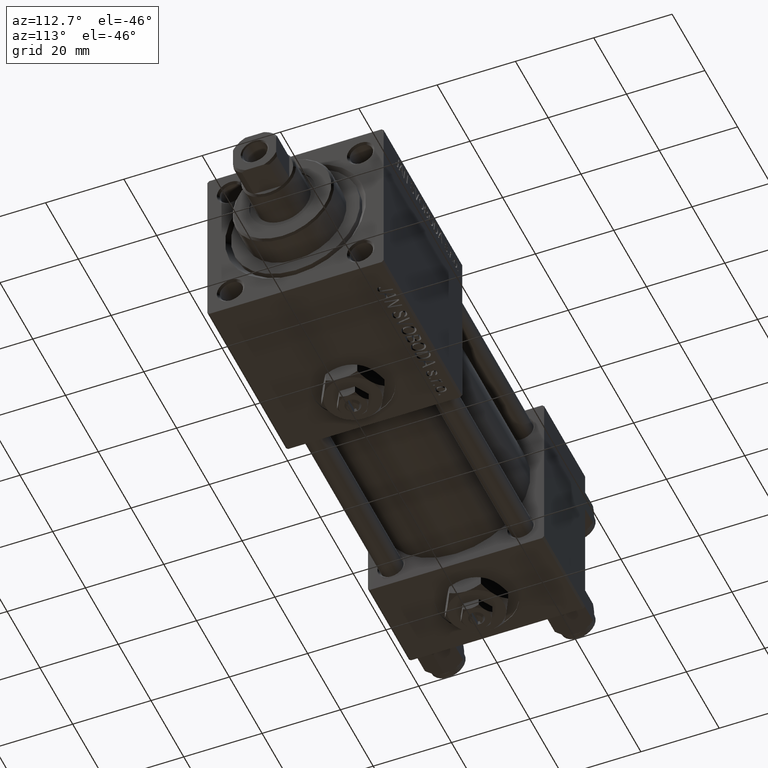
[diagram: clean part render]
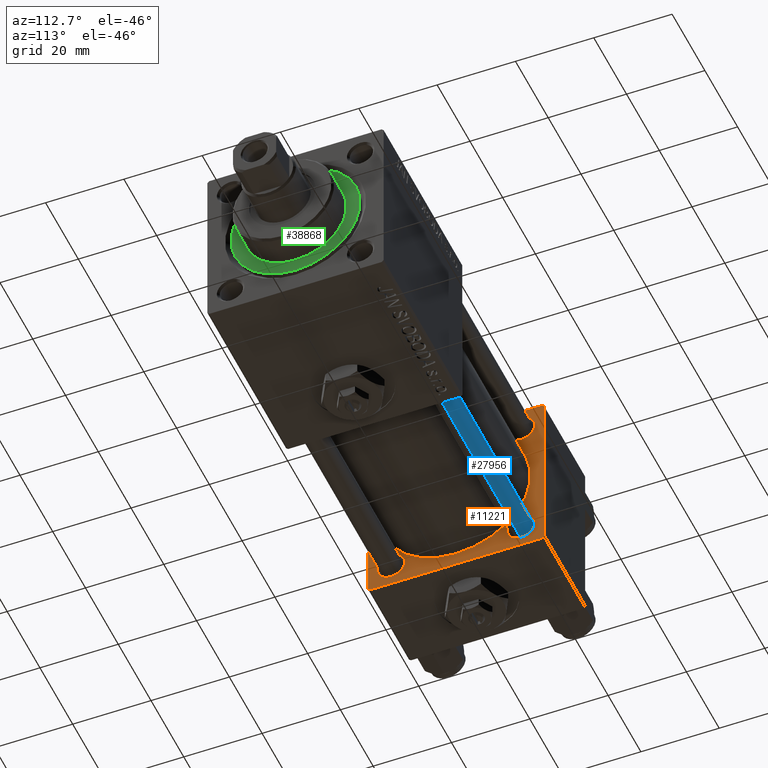
[diagram: same view with three faces highlighted in distinct colors, each labeled with its STEP entity id]
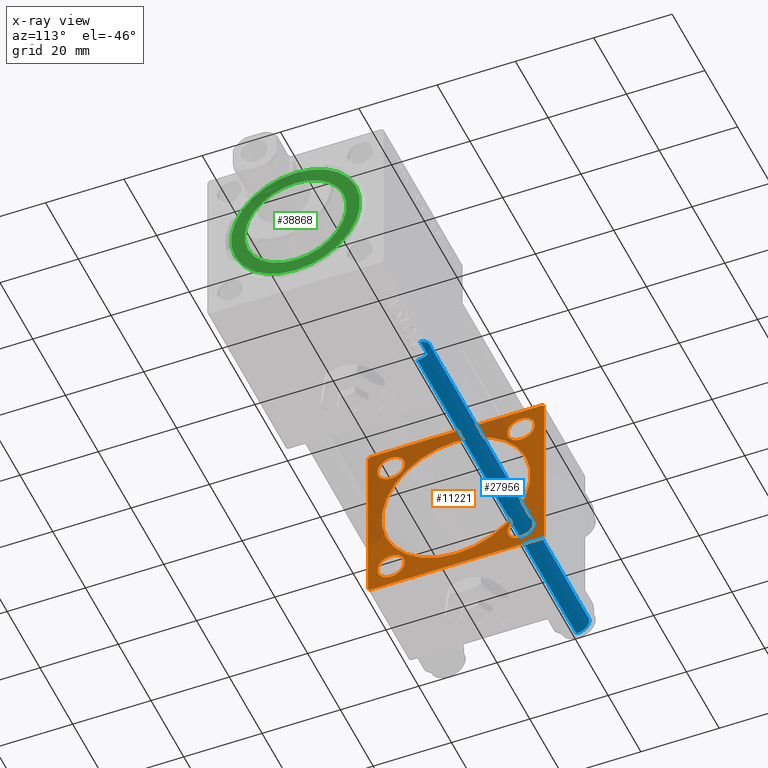
[diagram: x-ray of the same camera — body ghosted, the three highlighted faces saturated]
A machine part, auxiliary view with three faces highlighted in distinct colors.
The next image is the same camera in x-ray (body ghosted, the three faces saturated) — at least one of them is partly hidden behind the body in this view.
Their STEP definitions:

[orange] entity #11221 — the highlighted planar face has unit normal (-1, 0, 0).
#86 = DIRECTION ( 'NONE',  ( -1.000000000000000000, 0.000000000000000000, -0.000000000000000000 ) ) ;
#229 = AXIS2_PLACEMENT_3D ( 'NONE', #32023, #368, #28322 ) ;
#368 = DIRECTION ( 'NONE',  ( -1.000000000000000000, 0.000000000000000000, -0.000000000000000000 ) ) ;
#390 = CARTESIAN_POINT ( 'NONE',  ( 25.00000000000000000, -16.59999999999999076, 16.60000000000000853 ) ) ;
#661 = VERTEX_POINT ( 'NONE', #18632 ) ;
#1061 = EDGE_CURVE ( 'NONE', #34885, #38918, #35668, .T. ) ;
#1447 = CARTESIAN_POINT ( 'NONE',  ( 25.00000000000000000, 22.50000000000000000, -21.99999999999996803 ) ) ;
#1501 = EDGE_CURVE ( 'NONE', #20015, #45585, #28493, .T. ) ;
#1960 = VERTEX_POINT ( 'NONE', #51274 ) ;
#2271 = CARTESIAN_POINT ( 'NONE',  ( 25.00000000000000000, -2.602085213965210642E-15, 19.00000000000000000 ) ) ;
#2280 = LINE ( 'NONE', #22583, #23923 ) ;
#2391 = LINE ( 'NONE', #34575, #40016 ) ;
#2449 = VECTOR ( 'NONE', #6120, 1000.000000000000000 ) ;
#2513 = CARTESIAN_POINT ( 'NONE',  ( 25.00000000000000000, 21.99999999999999289, -22.49999999999999645 ) ) ;
#2673 = AXIS2_PLACEMENT_3D ( 'NONE', #45140, #5039, #37481 ) ;
#3078 = DIRECTION ( 'NONE',  ( -1.000000000000000000, 0.000000000000000000, -0.000000000000000000 ) ) ;
#3853 = ORIENTED_EDGE ( 'NONE', *, *, #23274, .F. ) ;
#4359 = DIRECTION ( 'NONE',  ( 0.000000000000000000, 0.000000000000000000, 1.000000000000000000 ) ) ;
#4387 = CARTESIAN_POINT ( 'NONE',  ( 25.00000000000000000, -16.59999999999999076, -20.09999999999999787 ) ) ;
#4488 = EDGE_CURVE ( 'NONE', #12583, #7032, #17740, .T. ) ;
#5039 = DIRECTION ( 'NONE',  ( 1.000000000000000000, -0.000000000000000000, 0.000000000000000000 ) ) ;
#5526 = DIRECTION ( 'NONE',  ( 0.000000000000000000, 0.000000000000000000, 1.000000000000000000 ) ) ;
#5797 = VECTOR ( 'NONE', #32284, 1000.000000000000114 ) ;
#6120 = DIRECTION ( 'NONE',  ( 0.000000000000000000, 0.000000000000000000, -1.000000000000000000 ) ) ;
#6390 = ORIENTED_EDGE ( 'NONE', *, *, #25442, .T. ) ;
#6749 = VECTOR ( 'NONE', #28401, 1000.000000000000000 ) ;
#6785 = PLANE ( 'NONE',  #21090 ) ;
#7032 = VERTEX_POINT ( 'NONE', #13164 ) ;
#7342 = VERTEX_POINT ( 'NONE', #34194 ) ;
#7427 = ORIENTED_EDGE ( 'NONE', *, *, #18854, .T. ) ;
#7720 = EDGE_CURVE ( 'NONE', #1960, #38456, #33608, .T. ) ;
#9186 = AXIS2_PLACEMENT_3D ( 'NONE', #48865, #20121, #24853 ) ;
#9856 = CARTESIAN_POINT ( 'NONE',  ( 25.00000000000000000, -16.59999999999999076, -13.10000000000001741 ) ) ;
#10727 = FACE_BOUND ( 'NONE', #33062, .T. ) ;
#11221 = ADVANCED_FACE ( 'NONE', ( #35770, #43170, #39471, #10727, #23120, #42908 ), #6785, .F. ) ;
#11565 = EDGE_CURVE ( 'NONE', #18913, #14906, #14342, .T. ) ;
#12440 = DIRECTION ( 'NONE',  ( 0.000000000000000000, 0.000000000000000000, -1.000000000000000000 ) ) ;
#12511 = DIRECTION ( 'NONE',  ( -1.000000000000000000, 0.000000000000000000, -0.000000000000000000 ) ) ;
#12583 = VERTEX_POINT ( 'NONE', #44929 ) ;
#13164 = CARTESIAN_POINT ( 'NONE',  ( 25.00000000000000000, -22.50000000000000000, -21.99999999999997158 ) ) ;
#14116 = VECTOR ( 'NONE', #12440, 1000.000000000000000 ) ;
#14298 = AXIS2_PLACEMENT_3D ( 'NONE', #390, #12511, #4359 ) ;
#14342 = CIRCLE ( 'NONE', #35424, 3.500000000000003109 ) ;
#14906 = VERTEX_POINT ( 'NONE', #40149 ) ;
#15064 = DIRECTION ( 'NONE',  ( 0.000000000000000000, 0.7071067811865426878, -0.7071067811865524577 ) ) ;
#15941 = LINE ( 'NONE', #44679, #5797 ) ;
#16849 = EDGE_CURVE ( 'NONE', #34885, #7342, #15941, .T. ) ;
#17083 = CIRCLE ( 'NONE', #229, 3.500000000000003109 ) ;
#17740 = LINE ( 'NONE', #25636, #2449 ) ;
#18632 = CARTESIAN_POINT ( 'NONE',  ( 25.00000000000000000, -2.752562955852396712E-16, -19.00000000000000000 ) ) ;
#18854 = EDGE_CURVE ( 'NONE', #49213, #38918, #29441, .T. ) ;
#18913 = VERTEX_POINT ( 'NONE', #41842 ) ;
#18916 = VERTEX_POINT ( 'NONE', #2271 ) ;
#19008 = EDGE_LOOP ( 'NONE', ( #28416, #28679 ) ) ;
#19112 = CARTESIAN_POINT ( 'NONE',  ( 25.00000000000000000, -21.99999999999997158, -22.50000000000000711 ) ) ;
#19163 = DIRECTION ( 'NONE',  ( 0.000000000000000000, -1.000000000000000000, -2.312964634635742957E-16 ) ) ;
#19178 = DIRECTION ( 'NONE',  ( -0.000000000000000000, 0.000000000000000000, 1.000000000000000000 ) ) ;
#20015 = VERTEX_POINT ( 'NONE', #4387 ) ;
#20121 = DIRECTION ( 'NONE',  ( -1.000000000000000000, 0.000000000000000000, -0.000000000000000000 ) ) ;
#20135 = DIRECTION ( 'NONE',  ( 0.000000000000000000, 0.000000000000000000, 1.000000000000000000 ) ) ;
#20379 = CARTESIAN_POINT ( 'NONE',  ( 25.00000000000000000, 22.50000000000000000, 22.50000000000000355 ) ) ;
#21049 = DIRECTION ( 'NONE',  ( 0.000000000000000000, 0.000000000000000000, 1.000000000000000000 ) ) ;
#21090 = AXIS2_PLACEMENT_3D ( 'NONE', #39221, #3078, #19178 ) ;
#21351 = CARTESIAN_POINT ( 'NONE',  ( 25.00000000000000000, -16.59999999999999076, -16.60000000000000853 ) ) ;
#21422 = CIRCLE ( 'NONE', #32367, 3.499999999999989342 ) ;
#21614 = DIRECTION ( 'NONE',  ( -1.000000000000000000, 0.000000000000000000, -0.000000000000000000 ) ) ;
#21776 = DIRECTION ( 'NONE',  ( 0.000000000000000000, 0.000000000000000000, 1.000000000000000000 ) ) ;
#22127 = ORIENTED_EDGE ( 'NONE', *, *, #32554, .T. ) ;
#22197 = EDGE_CURVE ( 'NONE', #27948, #51601, #31141, .T. ) ;
#22583 = CARTESIAN_POINT ( 'NONE',  ( 25.00000000000000000, 22.50000000000000000, -22.49999999999999645 ) ) ;
#23120 = FACE_BOUND ( 'NONE', #35903, .T. ) ;
#23274 = EDGE_CURVE ( 'NONE', #661, #18916, #45477, .T. ) ;
#23891 = ORIENTED_EDGE ( 'NONE', *, *, #4488, .T. ) ;
#23923 = VECTOR ( 'NONE', #19163, 1000.000000000000000 ) ;
#24406 = EDGE_CURVE ( 'NONE', #45199, #12583, #37004, .T. ) ;
#24853 = DIRECTION ( 'NONE',  ( 0.000000000000000000, 0.000000000000000000, 1.000000000000000000 ) ) ;
#25181 = ORIENTED_EDGE ( 'NONE', *, *, #35501, .T. ) ;
#25248 = CARTESIAN_POINT ( 'NONE',  ( 25.00000000000000000, -16.59999999999999076, -16.60000000000000853 ) ) ;
#25442 = EDGE_CURVE ( 'NONE', #51601, #27948, #34638, .T. ) ;
#25636 = CARTESIAN_POINT ( 'NONE',  ( 25.00000000000000000, -22.50000000000000000, 22.50000000000000000 ) ) ;
#25967 = CARTESIAN_POINT ( 'NONE',  ( 25.00000000000000000, -16.59999999999999076, 20.10000000000000142 ) ) ;
#26504 = ORIENTED_EDGE ( 'NONE', *, *, #1061, .F. ) ;
#26675 = ORIENTED_EDGE ( 'NONE', *, *, #11565, .T. ) ;
#26798 = EDGE_CURVE ( 'NONE', #18916, #661, #38891, .T. ) ;
#27889 = ORIENTED_EDGE ( 'NONE', *, *, #36366, .T. ) ;
#27948 = VERTEX_POINT ( 'NONE', #32479 ) ;
#28302 = DIRECTION ( 'NONE',  ( 0.000000000000000000, 0.000000000000000000, 1.000000000000000000 ) ) ;
#28322 = DIRECTION ( 'NONE',  ( 0.000000000000000000, 0.000000000000000000, 1.000000000000000000 ) ) ;
#28401 = DIRECTION ( 'NONE',  ( -0.000000000000000000, 0.7071067811865426878, 0.7071067811865524577 ) ) ;
#28416 = ORIENTED_EDGE ( 'NONE', *, *, #7720, .T. ) ;
#28493 = CIRCLE ( 'NONE', #40291, 3.499999999999989342 ) ;
#28679 = ORIENTED_EDGE ( 'NONE', *, *, #34764, .T. ) ;
#28906 = CARTESIAN_POINT ( 'NONE',  ( 25.00000000000000000, 16.59999999999999787, -16.60000000000000497 ) ) ;
#29060 = AXIS2_PLACEMENT_3D ( 'NONE', #28906, #37864, #21776 ) ;
#29401 = ORIENTED_EDGE ( 'NONE', *, *, #26798, .F. ) ;
#29441 = LINE ( 'NONE', #49002, #6749 ) ;
#29727 = DIRECTION ( 'NONE',  ( -1.000000000000000000, 0.000000000000000000, -0.000000000000000000 ) ) ;
#31141 = CIRCLE ( 'NONE', #14298, 3.499999999999992895 ) ;
#31155 = LINE ( 'NONE', #47253, #48379 ) ;
#32023 = CARTESIAN_POINT ( 'NONE',  ( 25.00000000000000000, 16.59999999999999787, 16.60000000000000497 ) ) ;
#32284 = DIRECTION ( 'NONE',  ( 0.000000000000000000, -0.7071067811865474617, 0.7071067811865474617 ) ) ;
#32316 = ORIENTED_EDGE ( 'NONE', *, *, #1501, .T. ) ;
#32367 = AXIS2_PLACEMENT_3D ( 'NONE', #25248, #29727, #21049 ) ;
#32479 = CARTESIAN_POINT ( 'NONE',  ( 25.00000000000000000, -16.59999999999999076, 13.10000000000001386 ) ) ;
#32554 = EDGE_CURVE ( 'NONE', #45585, #20015, #21422, .T. ) ;
#32619 = CARTESIAN_POINT ( 'NONE',  ( 25.00000000000000000, -21.99999999999997868, 22.50000000000000000 ) ) ;
#33062 = EDGE_LOOP ( 'NONE', ( #26675, #45885 ) ) ;
#33608 = CIRCLE ( 'NONE', #9186, 3.500000000000003109 ) ;
#34093 = ORIENTED_EDGE ( 'NONE', *, *, #24406, .T. ) ;
#34194 = CARTESIAN_POINT ( 'NONE',  ( 25.00000000000000000, 21.99999999999999289, 22.50000000000000355 ) ) ;
#34575 = CARTESIAN_POINT ( 'NONE',  ( 25.00000000000000000, 22.50000000000000000, 22.50000000000000355 ) ) ;
#34638 = CIRCLE ( 'NONE', #45555, 3.499999999999992895 ) ;
#34764 = EDGE_CURVE ( 'NONE', #38456, #1960, #34972, .T. ) ;
#34885 = VERTEX_POINT ( 'NONE', #46303 ) ;
#34972 = CIRCLE ( 'NONE', #29060, 3.500000000000003109 ) ;
#35125 = ORIENTED_EDGE ( 'NONE', *, *, #36616, .F. ) ;
#35381 = AXIS2_PLACEMENT_3D ( 'NONE', #50045, #42111, #38681 ) ;
#35424 = AXIS2_PLACEMENT_3D ( 'NONE', #44130, #86, #28302 ) ;
#35501 = EDGE_CURVE ( 'NONE', #7342, #45199, #2391, .T. ) ;
#35668 = LINE ( 'NONE', #20379, #14116 ) ;
#35770 = FACE_BOUND ( 'NONE', #43409, .T. ) ;
#35903 = EDGE_LOOP ( 'NONE', ( #29401, #3853 ) ) ;
#36366 = EDGE_CURVE ( 'NONE', #7032, #50565, #31155, .T. ) ;
#36616 = EDGE_CURVE ( 'NONE', #49213, #50565, #2280, .T. ) ;
#36748 = DIRECTION ( 'NONE',  ( -0.000000000000000000, -0.7071067811865525687, -0.7071067811865425767 ) ) ;
#37004 = LINE ( 'NONE', #40966, #44688 ) ;
#37481 = DIRECTION ( 'NONE',  ( 0.000000000000000000, 0.000000000000000000, 1.000000000000000000 ) ) ;
#37864 = DIRECTION ( 'NONE',  ( -1.000000000000000000, 0.000000000000000000, -0.000000000000000000 ) ) ;
#38456 = VERTEX_POINT ( 'NONE', #38764 ) ;
#38681 = DIRECTION ( 'NONE',  ( 0.000000000000000000, 0.000000000000000000, 1.000000000000000000 ) ) ;
#38764 = CARTESIAN_POINT ( 'NONE',  ( 25.00000000000000000, 16.59999999999999787, -13.10000000000000142 ) ) ;
#38891 = CIRCLE ( 'NONE', #2673, 19.00000000000000000 ) ;
#38918 = VERTEX_POINT ( 'NONE', #1447 ) ;
#39221 = CARTESIAN_POINT ( 'NONE',  ( 25.00000000000000000, 0.000000000000000000, 0.000000000000000000 ) ) ;
#39471 = FACE_BOUND ( 'NONE', #42367, .T. ) ;
#40016 = VECTOR ( 'NONE', #45929, 1000.000000000000000 ) ;
#40149 = CARTESIAN_POINT ( 'NONE',  ( 25.00000000000000000, 16.59999999999999787, 20.10000000000000853 ) ) ;
#40180 = DIRECTION ( 'NONE',  ( -1.000000000000000000, 0.000000000000000000, -0.000000000000000000 ) ) ;
#40291 = AXIS2_PLACEMENT_3D ( 'NONE', #21351, #21614, #5526 ) ;
#40708 = CARTESIAN_POINT ( 'NONE',  ( 25.00000000000000000, -16.59999999999999076, 16.60000000000000853 ) ) ;
#40966 = CARTESIAN_POINT ( 'NONE',  ( 25.00000000000000000, -22.50000000000000000, 22.00000000000000000 ) ) ;
#41842 = CARTESIAN_POINT ( 'NONE',  ( 25.00000000000000000, 16.59999999999999787, 13.10000000000000142 ) ) ;
#42111 = DIRECTION ( 'NONE',  ( 1.000000000000000000, -0.000000000000000000, 0.000000000000000000 ) ) ;
#42367 = EDGE_LOOP ( 'NONE', ( #46220, #6390 ) ) ;
#42908 = FACE_OUTER_BOUND ( 'NONE', #43649, .T. ) ;
#43170 = FACE_BOUND ( 'NONE', #19008, .T. ) ;
#43409 = EDGE_LOOP ( 'NONE', ( #32316, #22127 ) ) ;
#43649 = EDGE_LOOP ( 'NONE', ( #35125, #7427, #26504, #51991, #25181, #34093, #23891, #27889 ) ) ;
#44130 = CARTESIAN_POINT ( 'NONE',  ( 25.00000000000000000, 16.59999999999999787, 16.60000000000000497 ) ) ;
#44679 = CARTESIAN_POINT ( 'NONE',  ( 25.00000000000000000, 21.99999999999999289, 22.50000000000000355 ) ) ;
#44688 = VECTOR ( 'NONE', #36748, 999.9999999999998863 ) ;
#44929 = CARTESIAN_POINT ( 'NONE',  ( 25.00000000000000000, -22.50000000000000000, 22.00000000000000000 ) ) ;
#45140 = CARTESIAN_POINT ( 'NONE',  ( 25.00000000000000000, -2.602085213965210642E-15, 0.000000000000000000 ) ) ;
#45199 = VERTEX_POINT ( 'NONE', #32619 ) ;
#45477 = CIRCLE ( 'NONE', #35381, 19.00000000000000000 ) ;
#45555 = AXIS2_PLACEMENT_3D ( 'NONE', #40708, #40180, #20135 ) ;
#45585 = VERTEX_POINT ( 'NONE', #9856 ) ;
#45885 = ORIENTED_EDGE ( 'NONE', *, *, #49291, .T. ) ;
#45929 = DIRECTION ( 'NONE',  ( 0.000000000000000000, -1.000000000000000000, -7.709882115452476934E-17 ) ) ;
#46220 = ORIENTED_EDGE ( 'NONE', *, *, #22197, .T. ) ;
#46303 = CARTESIAN_POINT ( 'NONE',  ( 25.00000000000000000, 22.50000000000000000, 21.99999999999999645 ) ) ;
#47253 = CARTESIAN_POINT ( 'NONE',  ( 25.00000000000000000, -21.99999999999998579, -22.50000000000000711 ) ) ;
#48379 = VECTOR ( 'NONE', #15064, 1000.000000000000000 ) ;
#48865 = CARTESIAN_POINT ( 'NONE',  ( 25.00000000000000000, 16.59999999999999787, -16.60000000000000497 ) ) ;
#49002 = CARTESIAN_POINT ( 'NONE',  ( 25.00000000000000000, 22.50000000000000000, -21.99999999999998224 ) ) ;
#49213 = VERTEX_POINT ( 'NONE', #2513 ) ;
#49291 = EDGE_CURVE ( 'NONE', #14906, #18913, #17083, .T. ) ;
#50045 = CARTESIAN_POINT ( 'NONE',  ( 25.00000000000000000, -2.602085213965210642E-15, 0.000000000000000000 ) ) ;
#50565 = VERTEX_POINT ( 'NONE', #19112 ) ;
#51274 = CARTESIAN_POINT ( 'NONE',  ( 25.00000000000000000, 16.59999999999999787, -20.10000000000000853 ) ) ;
#51601 = VERTEX_POINT ( 'NONE', #25967 ) ;
#51991 = ORIENTED_EDGE ( 'NONE', *, *, #16849, .T. ) ;

[blue] entity #27956 — the highlighted cylindrical surface (edge-blend (fillet) strip) has radius 3 mm, axis along (1, -0, 0).
#4806 = EDGE_CURVE ( 'NONE', #34854, #36633, #21565, .T. ) ;
#8791 = ORIENTED_EDGE ( 'NONE', *, *, #14551, .T. ) ;
#8802 = AXIS2_PLACEMENT_3D ( 'NONE', #41999, #32786, #48892 ) ;
#9449 = AXIS2_PLACEMENT_3D ( 'NONE', #32219, #11911, #47803 ) ;
#9953 = CARTESIAN_POINT ( 'NONE',  ( 0.000000000000000000, 0.000000000000000000, 0.5000000000000281997 ) ) ;
#10454 = CARTESIAN_POINT ( 'NONE',  ( -3.000000000000000444, 0.000000000000000000, 0.5000000000000281997 ) ) ;
#11911 = DIRECTION ( 'NONE',  ( -0.000000000000000000, -0.000000000000000000, -1.000000000000000000 ) ) ;
#12451 = VECTOR ( 'NONE', #50011, 1000.000000000000000 ) ;
#12865 = CARTESIAN_POINT ( 'NONE',  ( -3.000000000000000444, 0.000000000000000000, 98.00000000000000000 ) ) ;
#14551 = EDGE_CURVE ( 'NONE', #45242, #26620, #49493, .T. ) ;
#18678 = DIRECTION ( 'NONE',  ( -0.000000000000000000, -0.000000000000000000, 1.000000000000000000 ) ) ;
#20743 = CARTESIAN_POINT ( 'NONE',  ( 3.000000000000000444, 3.673940397442060361E-16, 98.00000000000000000 ) ) ;
#21565 = LINE ( 'NONE', #12865, #47113 ) ;
#24037 = CARTESIAN_POINT ( 'NONE',  ( 3.000000000000000444, 3.673940397442060361E-16, 0.5000000000000281997 ) ) ;
#24294 = CYLINDRICAL_SURFACE ( 'NONE', #9449, 3.000000000000000444 ) ;
#25343 = ORIENTED_EDGE ( 'NONE', *, *, #4806, .F. ) ;
#26620 = VERTEX_POINT ( 'NONE', #24037 ) ;
#27956 = ADVANCED_FACE ( 'NONE', ( #35651 ), #24294, .T. ) ;
#28151 = ORIENTED_EDGE ( 'NONE', *, *, #33175, .T. ) ;
#32219 = CARTESIAN_POINT ( 'NONE',  ( 0.000000000000000000, 0.000000000000000000, 98.00000000000000000 ) ) ;
#32786 = DIRECTION ( 'NONE',  ( 0.000000000000000000, 0.000000000000000000, -1.000000000000000000 ) ) ;
#33175 = EDGE_CURVE ( 'NONE', #34854, #45242, #36626, .T. ) ;
#34482 = DIRECTION ( 'NONE',  ( 1.000000000000000000, 0.000000000000000000, 0.000000000000000000 ) ) ;
#34693 = CARTESIAN_POINT ( 'NONE',  ( -3.000000000000000444, 0.000000000000000000, 97.50000000000001421 ) ) ;
#34728 = CIRCLE ( 'NONE', #43167, 3.000000000000000444 ) ;
#34854 = VERTEX_POINT ( 'NONE', #34693 ) ;
#35651 = FACE_OUTER_BOUND ( 'NONE', #47404, .T. ) ;
#36341 = ORIENTED_EDGE ( 'NONE', *, *, #48089, .T. ) ;
#36626 = CIRCLE ( 'NONE', #8802, 3.000000000000000444 ) ;
#36633 = VERTEX_POINT ( 'NONE', #10454 ) ;
#41999 = CARTESIAN_POINT ( 'NONE',  ( 0.000000000000000000, 0.000000000000000000, 97.50000000000001421 ) ) ;
#43167 = AXIS2_PLACEMENT_3D ( 'NONE', #9953, #18678, #34482 ) ;
#44493 = CARTESIAN_POINT ( 'NONE',  ( 3.000000000000000444, 3.673940397442060361E-16, 97.50000000000001421 ) ) ;
#45242 = VERTEX_POINT ( 'NONE', #44493 ) ;
#46083 = DIRECTION ( 'NONE',  ( -0.000000000000000000, -0.000000000000000000, -1.000000000000000000 ) ) ;
#47113 = VECTOR ( 'NONE', #46083, 1000.000000000000000 ) ;
#47404 = EDGE_LOOP ( 'NONE', ( #28151, #8791, #36341, #25343 ) ) ;
#47803 = DIRECTION ( 'NONE',  ( -1.000000000000000000, 0.000000000000000000, 0.000000000000000000 ) ) ;
#48089 = EDGE_CURVE ( 'NONE', #26620, #36633, #34728, .T. ) ;
#48892 = DIRECTION ( 'NONE',  ( 1.000000000000000000, 0.000000000000000000, 0.000000000000000000 ) ) ;
#49493 = LINE ( 'NONE', #20743, #12451 ) ;
#50011 = DIRECTION ( 'NONE',  ( -0.000000000000000000, -0.000000000000000000, -1.000000000000000000 ) ) ;

[green] entity #38868 — the highlighted planar face has unit normal (1, 0, 0).
#371 = ORIENTED_EDGE ( 'NONE', *, *, #35473, .T. ) ;
#1080 = DIRECTION ( 'NONE',  ( 0.000000000000000000, 0.000000000000000000, 1.000000000000000000 ) ) ;
#2090 = AXIS2_PLACEMENT_3D ( 'NONE', #28625, #20730, #49223 ) ;
#2094 = CIRCLE ( 'NONE', #26411, 16.50000000000000000 ) ;
#3467 = ORIENTED_EDGE ( 'NONE', *, *, #19773, .F. ) ;
#4900 = FACE_BOUND ( 'NONE', #21112, .T. ) ;
#8082 = VERTEX_POINT ( 'NONE', #47155 ) ;
#13289 = EDGE_CURVE ( 'NONE', #14370, #14948, #38032, .T. ) ;
#14370 = VERTEX_POINT ( 'NONE', #18685 ) ;
#14948 = VERTEX_POINT ( 'NONE', #35150 ) ;
#16162 = AXIS2_PLACEMENT_3D ( 'NONE', #41435, #1080, #16922 ) ;
#16246 = CARTESIAN_POINT ( 'NONE',  ( 0.000000000000000000, 0.000000000000000000, 28.69999999999999929 ) ) ;
#16922 = DIRECTION ( 'NONE',  ( 1.000000000000000000, 0.000000000000000000, 0.000000000000000000 ) ) ;
#17704 = AXIS2_PLACEMENT_3D ( 'NONE', #45829, #46090, #49803 ) ;
#18685 = CARTESIAN_POINT ( 'NONE',  ( -16.50000000000000000, 0.000000000000000000, 28.69999999999999929 ) ) ;
#19773 = EDGE_CURVE ( 'NONE', #8082, #30132, #36254, .T. ) ;
#20730 = DIRECTION ( 'NONE',  ( 0.000000000000000000, 0.000000000000000000, 1.000000000000000000 ) ) ;
#21112 = EDGE_LOOP ( 'NONE', ( #3467, #23366 ) ) ;
#22962 = DIRECTION ( 'NONE',  ( 0.000000000000000000, 0.000000000000000000, 1.000000000000000000 ) ) ;
#23366 = ORIENTED_EDGE ( 'NONE', *, *, #26884, .F. ) ;
#24674 = PLANE ( 'NONE',  #2090 ) ;
#26411 = AXIS2_PLACEMENT_3D ( 'NONE', #38529, #22962, #49896 ) ;
#26884 = EDGE_CURVE ( 'NONE', #30132, #8082, #34669, .T. ) ;
#28615 = DIRECTION ( 'NONE',  ( 0.000000000000000000, 0.000000000000000000, 1.000000000000000000 ) ) ;
#28625 = CARTESIAN_POINT ( 'NONE',  ( 0.000000000000000000, 0.000000000000000000, 28.69999999999999929 ) ) ;
#30132 = VERTEX_POINT ( 'NONE', #45471 ) ;
#32981 = AXIS2_PLACEMENT_3D ( 'NONE', #16246, #28615, #48948 ) ;
#34669 = CIRCLE ( 'NONE', #16162, 13.00000000000000178 ) ;
#35150 = CARTESIAN_POINT ( 'NONE',  ( 16.50000000000000000, 2.020667218593133100E-15, 28.69999999999999929 ) ) ;
#35473 = EDGE_CURVE ( 'NONE', #14948, #14370, #2094, .T. ) ;
#36254 = CIRCLE ( 'NONE', #17704, 13.00000000000000178 ) ;
#37077 = FACE_OUTER_BOUND ( 'NONE', #37867, .T. ) ;
#37867 = EDGE_LOOP ( 'NONE', ( #41550, #371 ) ) ;
#38032 = CIRCLE ( 'NONE', #32981, 16.50000000000000000 ) ;
#38529 = CARTESIAN_POINT ( 'NONE',  ( 0.000000000000000000, 0.000000000000000000, 28.69999999999999929 ) ) ;
#38868 = ADVANCED_FACE ( 'NONE', ( #4900, #37077 ), #24674, .T. ) ;
#41435 = CARTESIAN_POINT ( 'NONE',  ( 0.000000000000000000, 0.000000000000000000, 28.69999999999999929 ) ) ;
#41550 = ORIENTED_EDGE ( 'NONE', *, *, #13289, .T. ) ;
#45471 = CARTESIAN_POINT ( 'NONE',  ( 13.00000000000000178, 1.592040838891559293E-15, 28.69999999999999929 ) ) ;
#45829 = CARTESIAN_POINT ( 'NONE',  ( 0.000000000000000000, 0.000000000000000000, 28.69999999999999929 ) ) ;
#46090 = DIRECTION ( 'NONE',  ( 0.000000000000000000, 0.000000000000000000, 1.000000000000000000 ) ) ;
#47155 = CARTESIAN_POINT ( 'NONE',  ( -13.00000000000000178, 0.000000000000000000, 28.69999999999999929 ) ) ;
#48948 = DIRECTION ( 'NONE',  ( 1.000000000000000000, 0.000000000000000000, 0.000000000000000000 ) ) ;
#49223 = DIRECTION ( 'NONE',  ( 1.000000000000000000, 0.000000000000000000, -0.000000000000000000 ) ) ;
#49803 = DIRECTION ( 'NONE',  ( 1.000000000000000000, 0.000000000000000000, 0.000000000000000000 ) ) ;
#49896 = DIRECTION ( 'NONE',  ( 1.000000000000000000, 0.000000000000000000, 0.000000000000000000 ) ) ;